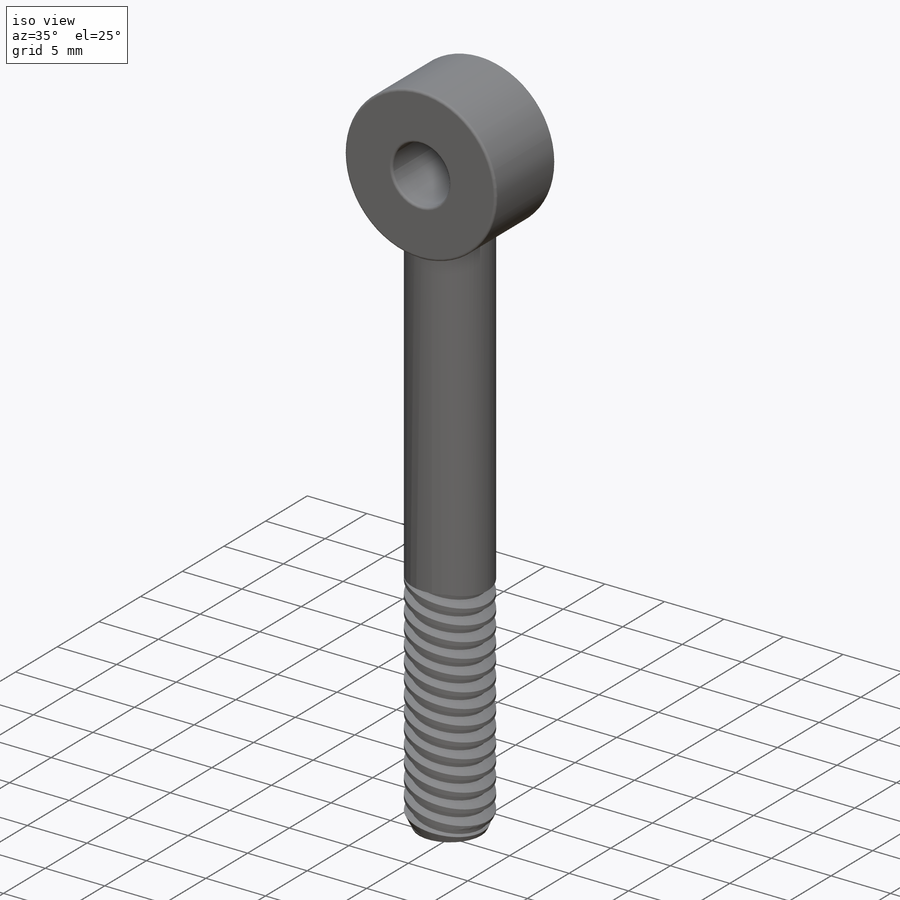
[diagram: iso view]
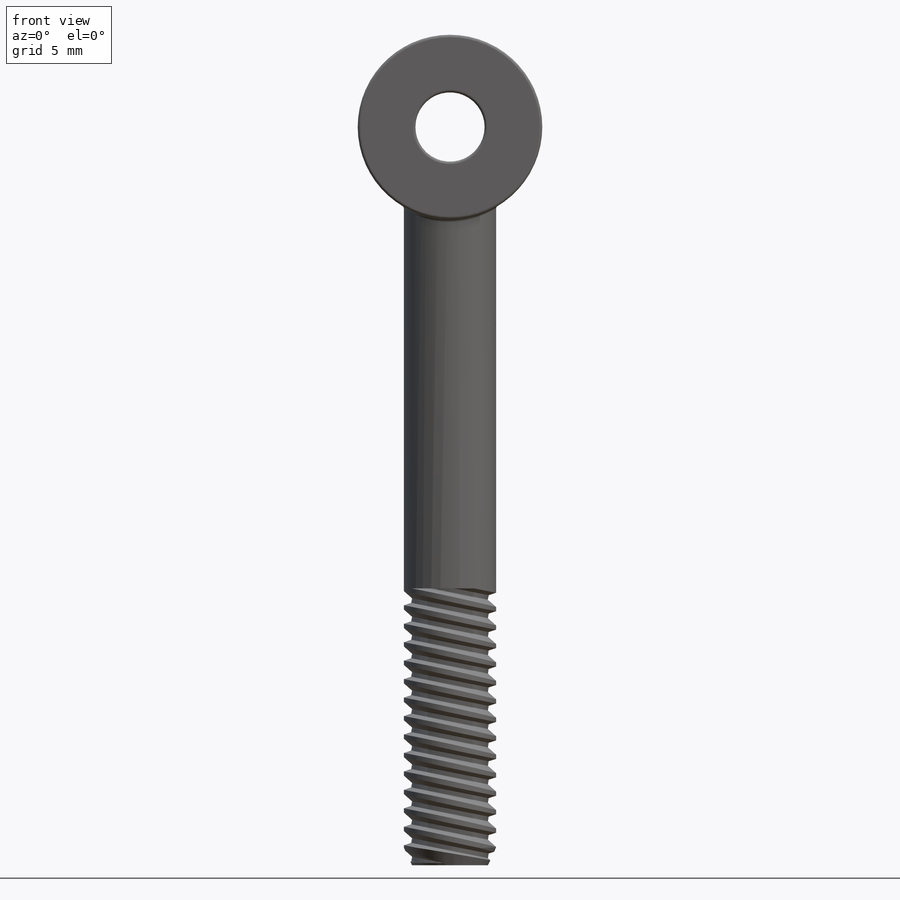
[diagram: front view]
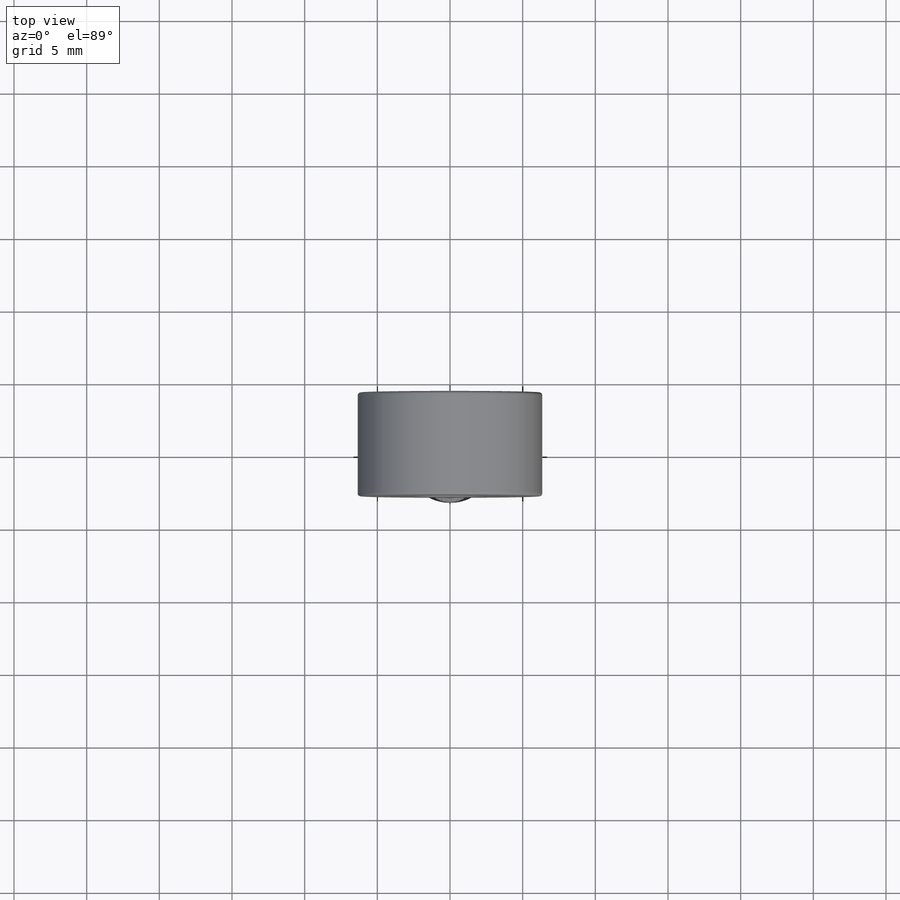
[diagram: top view]
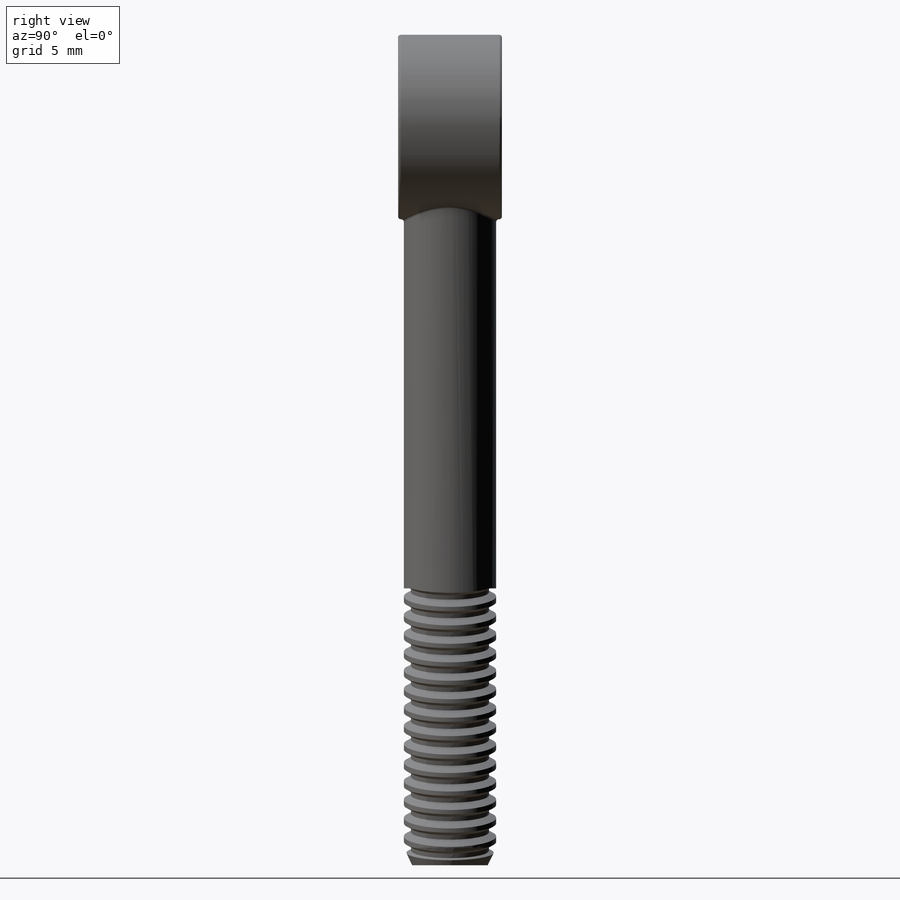
[diagram: right view]
SOLIDWORKS PART (.sldprt)
format: sldprt  version: not decoded by parser v0  size: 473,600 bytes
history: native  units: mm
features: sketch x5, revolve x2, cut_revolve x2, material x1, pattern_linear x1, extrude x1, fillet x1 (+14 scaffold rows collapsed)
feature tree (27):
  scaffold x14  (default folders/planes/origin — collapsed)
  material  "Material <not specified>"
  sketch  "Sketch1"  dims[c1.Eye ID B=4.7625mm c1.Eye OD C=12.7mm c1.D1=~19.189254mm c1.D2=63.5mm c1.Thread Dia=~10.700875mm c1.Thread Length A=19.05mm c1.Length E=50.8mm c2.Thread Dia=6.35mm c2.Eye Width D=~7.14375mm c2.D1=~0.396875mm]
  revolve  "Revolve1"  Angle=360deg
  sketch  "Sketch2"  dims[c1.D1=~0.15875mm c1.D2=0.3175mm c1.D3=~6.012419mm c2.D3=60.0deg c2.Thread Pitch=1.27mm c2.D5=1.27mm]
  cut_revolve  "Cut-Revolve1"  Angle=360deg
  sketch  "Sketch3"  dims[c1.D4=63.5mm c1.D1=~2.749131mm c2.D1=25.0deg c2.D2=19.05mm c2.D3=6.35mm c2.D4=57.15mm]
  cut_revolve  "Cut-Revolve2"  Angle=360deg
  pattern_linear  "LPattern1"  Count1=2 Count2=15 Spacing1=1.27mm Spacing2=1.27mm
  sketch  "Sketch4"
  revolve  "Revolve2"  Angle=360deg
  sketch  "Sketch5"
  extrude  "Extrude1"  Depth=7.14375mm
  fillet  "Fillet2"  Radius=0.198437mm hex flats=14.2748mm hex flats/2=7.366mm
decode coverage: 10 of 12 modeling features carry decoded parameters
note: ~ marks probable driven/reference dimensions
note: suppression state not decoded; provenance and decode notes live in map.json
